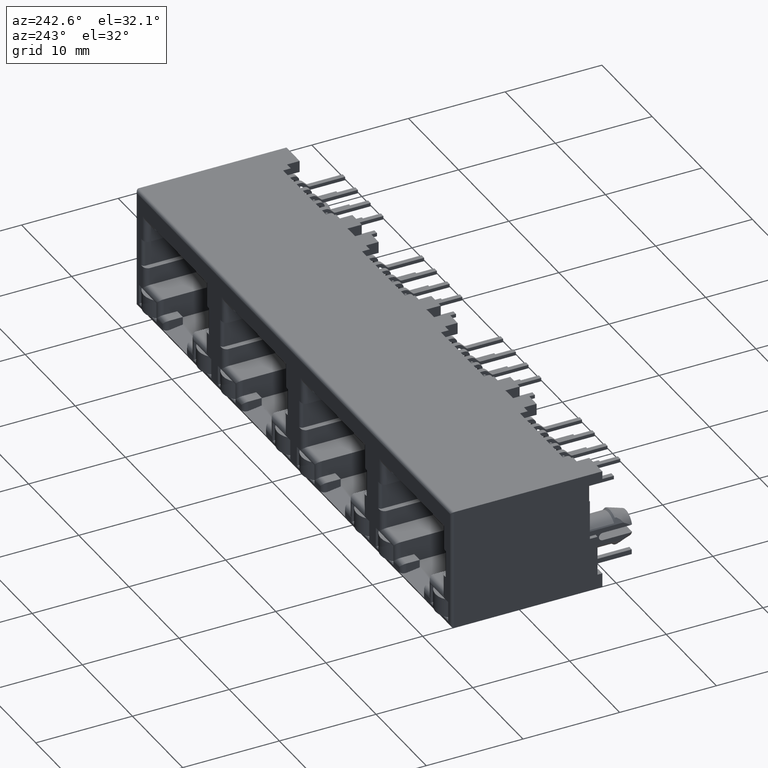
[diagram: clean part render]
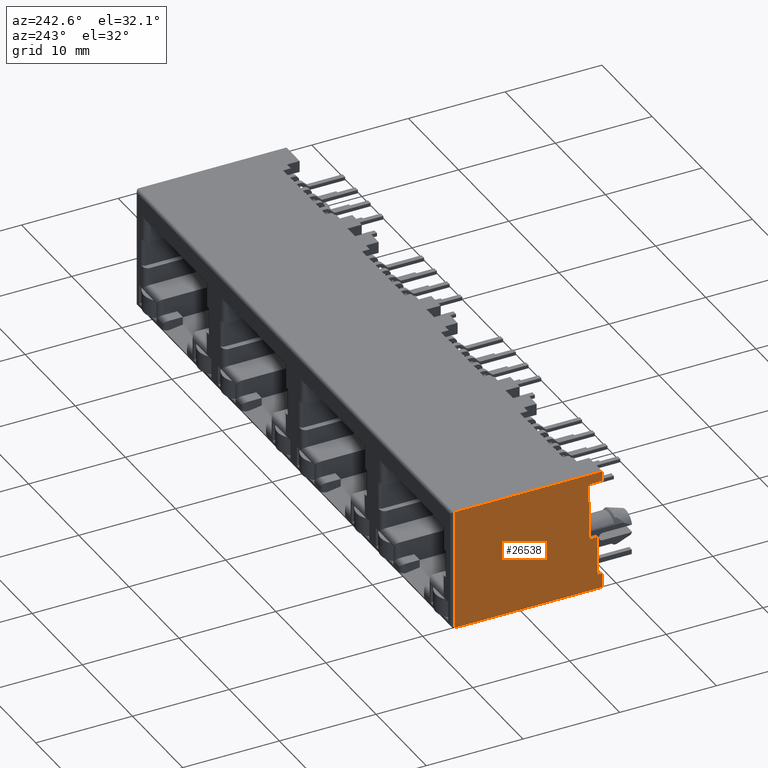
[diagram: same view with one face highlighted and labeled with its STEP entity id]
A machine part, auxiliary view. The second image highlights one B-rep face of the part: STEP entity #26538.
In plain terms, the highlighted planar face has unit normal (1, 0, 0).
Its self-contained STEP definition (entity closure, byte-faithful):
#55 = CARTESIAN_POINT ( 'NONE',  ( -31.50000000000000000, -6.500000000000000900, 3.450000000000000200 ) ) ;
#434 = CARTESIAN_POINT ( 'NONE',  ( -31.50000000000000000, -6.500000000000000900, 2.083333333333333000 ) ) ;
#683 = VERTEX_POINT ( 'NONE', #9880 ) ;
#1081 = CARTESIAN_POINT ( 'NONE',  ( -31.50000000000000000, -7.299999999999999800, -2.016666666666667100 ) ) ;
#1805 = CARTESIAN_POINT ( 'NONE',  ( -31.50000000000000000, -7.300000000000000700, -4.750000000000000000 ) ) ;
#2085 = CARTESIAN_POINT ( 'NONE',  ( -31.50000000000000000, -6.500000000000000900, 3.450000000000000200 ) ) ;
#2777 = EDGE_CURVE ( 'NONE', #54307, #683, #27823, .T. ) ;
#3008 = ORIENTED_EDGE ( 'NONE', *, *, #20198, .F. ) ;
#3746 = CARTESIAN_POINT ( 'NONE',  ( -31.50000000000000000, -6.500000000000000900, -0.6500000000000000200 ) ) ;
#5172 = ORIENTED_EDGE ( 'NONE', *, *, #21137, .F. ) ;
#5208 = CARTESIAN_POINT ( 'NONE',  ( -31.50000000000000000, -6.349999999999997900, 3.450000000000000200 ) ) ;
#5514 = CARTESIAN_POINT ( 'NONE',  ( -31.50000000000000000, -6.349999999999997900, 3.450000000000000200 ) ) ;
#5989 = B_SPLINE_CURVE_WITH_KNOTS ( 'NONE', 3,
 ( #63293, #57404, #41717, #9235 ),
 .UNSPECIFIED., .F., .F.,
 ( 4, 4 ),
 ( 0.0000000000000000000, 1.000000000000000000 ),
 .UNSPECIFIED. ) ;
#7032 = ORIENTED_EDGE ( 'NONE', *, *, #40202, .F. ) ;
#7733 = CARTESIAN_POINT ( 'NONE',  ( -31.50000000000000000, -7.300000000000000700, -4.750000000000000000 ) ) ;
#8580 = EDGE_CURVE ( 'NONE', #17615, #8742, #40183, .T. ) ;
#8742 = VERTEX_POINT ( 'NONE', #66543 ) ;
#9012 = B_SPLINE_CURVE_WITH_KNOTS ( 'NONE', 3,
 ( #3746, #52822, #25048, #30505 ),
 .UNSPECIFIED., .F., .F.,
 ( 4, 4 ),
 ( 0.0000000000000000000, 1.000000000000000000 ),
 .UNSPECIFIED. ) ;
#9235 = CARTESIAN_POINT ( 'NONE',  ( -31.50000000000000000, -6.349999999999997900, 5.249999999999999100 ) ) ;
#9880 = CARTESIAN_POINT ( 'NONE',  ( -31.50000000000000000, 7.500000000000000000, -6.250000000000000000 ) ) ;
#11092 = CARTESIAN_POINT ( 'NONE',  ( -31.49999999999801400, -6.349999999998009200, 4.649999999999998600 ) ) ;
#11522 = CARTESIAN_POINT ( 'NONE',  ( -31.50000000000000000, -6.500000000000000900, 3.450000000000000200 ) ) ;
#13955 = CARTESIAN_POINT ( 'NONE',  ( -31.50000000000000000, -7.799999999999999800, -5.750000000000000000 ) ) ;
#14431 = VERTEX_POINT ( 'NONE', #22978 ) ;
#14692 = CARTESIAN_POINT ( 'NONE',  ( -31.50000000000000000, -7.800000000000000700, 6.299999999999999800 ) ) ;
#15457 = CARTESIAN_POINT ( 'NONE',  ( -31.50000000000000000, -6.399999999999998600, 3.449999999999999700 ) ) ;
#16512 = ORIENTED_EDGE ( 'NONE', *, *, #57462, .F. ) ;
#17513 = ORIENTED_EDGE ( 'NONE', *, *, #42119, .F. ) ;
#17615 = VERTEX_POINT ( 'NONE', #2085 ) ;
#18555 = CARTESIAN_POINT ( 'NONE',  ( -31.50000000000000000, 7.500000000000000000, 6.299999999999999800 ) ) ;
#18674 = ORIENTED_EDGE ( 'NONE', *, *, #53022, .T. ) ;
#20198 = EDGE_CURVE ( 'NONE', #67126, #683, #59622, .T. ) ;
#21137 = EDGE_CURVE ( 'NONE', #67197, #61214, #30865, .T. ) ;
#22580 = VERTEX_POINT ( 'NONE', #47813 ) ;
#22978 = CARTESIAN_POINT ( 'NONE',  ( -31.50000000000000000, -6.349999999999997900, 5.249999999999999100 ) ) ;
#22981 = CARTESIAN_POINT ( 'NONE',  ( -31.50000000000000000, -7.800000000000000700, -6.250000000000000000 ) ) ;
#23556 = EDGE_LOOP ( 'NONE', ( #7032, #17513, #5172, #47651, #58033, #33050, #16512, #42414, #36884, #18674, #54699, #3008 ) ) ;
#24090 = CARTESIAN_POINT ( 'NONE',  ( -31.50000000000000000, -7.800000000000000700, 6.299999999999999800 ) ) ;
#25048 = CARTESIAN_POINT ( 'NONE',  ( -31.50000000000000000, -7.033333333333334100, -0.6500000000000001300 ) ) ;
#25300 = CARTESIAN_POINT ( 'NONE',  ( -31.50000000000000000, -7.800000000000000700, -6.250000000000000000 ) ) ;
#25584 = EDGE_CURVE ( 'NONE', #48247, #14431, #5989, .T. ) ;
#26086 = EDGE_CURVE ( 'NONE', #8742, #67197, #9012, .T. ) ;
#26538 = ADVANCED_FACE ( 'NONE', ( #36885 ), #66722, .F. ) ;
#26826 = B_SPLINE_CURVE_WITH_KNOTS ( 'NONE', 3,
 ( #5514, #15457, #43427, #55 ),
 .UNSPECIFIED., .F., .F.,
 ( 4, 4 ),
 ( 0.0000000000000000000, 1.000000000000000000 ),
 .UNSPECIFIED. ) ;
#26907 = EDGE_CURVE ( 'NONE', #55022, #17615, #26826, .T. ) ;
#27823 = B_SPLINE_CURVE_WITH_KNOTS ( 'NONE', 3,
 ( #47733, #58632, #53412, #69287 ),
 .UNSPECIFIED., .F., .F.,
 ( 4, 4 ),
 ( 0.0000000000000000000, 1.000000000000000000 ),
 .UNSPECIFIED. ) ;
#28535 = CARTESIAN_POINT ( 'NONE',  ( -31.50000000000000000, -7.300000000000000700, -4.750000000000000000 ) ) ;
#29082 = AXIS2_PLACEMENT_3D ( 'NONE', #45393, #55373, #60803 ) ;
#29152 = CARTESIAN_POINT ( 'NONE',  ( -31.50000000000000000, -6.349999999999997900, 3.450000000000000200 ) ) ;
#29224 = EDGE_CURVE ( 'NONE', #44753, #48247, #56329, .T. ) ;
#30206 = CARTESIAN_POINT ( 'NONE',  ( -31.50000000000000000, -7.466666666666667700, -4.750000000000000000 ) ) ;
#30505 = CARTESIAN_POINT ( 'NONE',  ( -31.50000000000000000, -7.300000000000000700, -0.6500000000000000200 ) ) ;
#30865 = B_SPLINE_CURVE_WITH_KNOTS ( 'NONE', 3,
 ( #49688, #1081, #55136, #28535 ),
 .UNSPECIFIED., .F., .F.,
 ( 4, 4 ),
 ( 0.0000000000000000000, 1.000000000000000000 ),
 .UNSPECIFIED. ) ;
#31146 = CARTESIAN_POINT ( 'NONE',  ( -31.50000000000000000, -7.800000000000000700, -6.250000000000000000 ) ) ;
#33050 = ORIENTED_EDGE ( 'NONE', *, *, #26907, .F. ) ;
#33155 = CARTESIAN_POINT ( 'NONE',  ( -31.49999999999801400, -6.349999999998009200, 4.049999999999999800 ) ) ;
#33359 = CARTESIAN_POINT ( 'NONE',  ( -31.50000000000000000, -6.500000000000000900, -0.6500000000000000200 ) ) ;
#36143 = CARTESIAN_POINT ( 'NONE',  ( -31.50000000000000000, -7.800000000000000700, 6.299999999999999800 ) ) ;
#36268 = CARTESIAN_POINT ( 'NONE',  ( -31.50000000000000000, 2.399999999999999500, 6.300000000000000700 ) ) ;
#36384 = CARTESIAN_POINT ( 'NONE',  ( -31.50000000000000000, -7.799999999999999800, 5.949999999999997500 ) ) ;
#36816 = CARTESIAN_POINT ( 'NONE',  ( -31.50000000000000000, -2.700000000000001100, -6.250000000000000000 ) ) ;
#36884 = ORIENTED_EDGE ( 'NONE', *, *, #29224, .F. ) ;
#36885 = FACE_OUTER_BOUND ( 'NONE', #23556, .T. ) ;
#40183 = B_SPLINE_CURVE_WITH_KNOTS ( 'NONE', 3,
 ( #11522, #434, #66302, #33359 ),
 .UNSPECIFIED., .F., .F.,
 ( 4, 4 ),
 ( 0.0000000000000000000, 1.000000000000000000 ),
 .UNSPECIFIED. ) ;
#40202 = EDGE_CURVE ( 'NONE', #22580, #67126, #54368, .T. ) ;
#40993 = CARTESIAN_POINT ( 'NONE',  ( -31.50000000000000000, -7.800000000000000700, -4.750000000000000900 ) ) ;
#41717 = CARTESIAN_POINT ( 'NONE',  ( -31.50000000000000000, -6.833333333333332100, 5.250000000000000000 ) ) ;
#42119 = EDGE_CURVE ( 'NONE', #61214, #22580, #53888, .T. ) ;
#42414 = ORIENTED_EDGE ( 'NONE', *, *, #25584, .F. ) ;
#43427 = CARTESIAN_POINT ( 'NONE',  ( -31.50000000000000000, -6.450000000000000200, 3.449999999999999700 ) ) ;
#43819 = CARTESIAN_POINT ( 'NONE',  ( -31.50000000000000000, -6.349999999999997900, 5.249999999999999100 ) ) ;
#44753 = VERTEX_POINT ( 'NONE', #24090 ) ;
#45393 = CARTESIAN_POINT ( 'NONE',  ( -31.50000000000000000, 7.806000000000000000, -6.501000000000000300 ) ) ;
#46135 = CARTESIAN_POINT ( 'NONE',  ( -31.50000000000000000, -7.633333333333333700, -4.750000000000000000 ) ) ;
#47651 = ORIENTED_EDGE ( 'NONE', *, *, #26086, .F. ) ;
#47733 = CARTESIAN_POINT ( 'NONE',  ( -31.50000000000000000, 7.500000000000000000, 6.299999999999999800 ) ) ;
#47813 = CARTESIAN_POINT ( 'NONE',  ( -31.50000000000000000, -7.800000000000000700, -4.750000000000000900 ) ) ;
#48247 = VERTEX_POINT ( 'NONE', #67257 ) ;
#49688 = CARTESIAN_POINT ( 'NONE',  ( -31.50000000000000000, -7.300000000000000700, -0.6500000000000000200 ) ) ;
#51446 = B_SPLINE_CURVE_WITH_KNOTS ( 'NONE', 3,
 ( #14692, #63527, #36268, #69014 ),
 .UNSPECIFIED., .F., .F.,
 ( 4, 4 ),
 ( 0.0000000000000000000, 1.000000000000000000 ),
 .UNSPECIFIED. ) ;
#52761 = B_SPLINE_CURVE_WITH_KNOTS ( 'NONE', 3,
 ( #43819, #11092, #33155, #5208 ),
 .UNSPECIFIED., .F., .F.,
 ( 4, 4 ),
 ( 0.0000000000000000000, 1.000000000000000000 ),
 .UNSPECIFIED. ) ;
#52822 = CARTESIAN_POINT ( 'NONE',  ( -31.50000000000000000, -6.766666666666667500, -0.6500000000000001300 ) ) ;
#52856 = CARTESIAN_POINT ( 'NONE',  ( -31.50000000000000000, -7.300000000000000700, -0.6500000000000000200 ) ) ;
#53022 = EDGE_CURVE ( 'NONE', #44753, #54307, #51446, .T. ) ;
#53212 = CARTESIAN_POINT ( 'NONE',  ( -31.50000000000000000, 2.399999999999999500, -6.250000000000000000 ) ) ;
#53412 = CARTESIAN_POINT ( 'NONE',  ( -31.50000000000000000, 7.499999999999996400, -2.066666666666667300 ) ) ;
#53888 = B_SPLINE_CURVE_WITH_KNOTS ( 'NONE', 3,
 ( #7733, #30206, #46135, #56557 ),
 .UNSPECIFIED., .F., .F.,
 ( 4, 4 ),
 ( 0.0000000000000000000, 1.000000000000000000 ),
 .UNSPECIFIED. ) ;
#54180 = CARTESIAN_POINT ( 'NONE',  ( -31.50000000000000000, -7.799999999999999800, 5.599999999999997900 ) ) ;
#54307 = VERTEX_POINT ( 'NONE', #18555 ) ;
#54368 = B_SPLINE_CURVE_WITH_KNOTS ( 'NONE', 3,
 ( #40993, #60700, #13955, #22981 ),
 .UNSPECIFIED., .F., .F.,
 ( 4, 4 ),
 ( 0.0000000000000000000, 1.000000000000000000 ),
 .UNSPECIFIED. ) ;
#54699 = ORIENTED_EDGE ( 'NONE', *, *, #2777, .T. ) ;
#55022 = VERTEX_POINT ( 'NONE', #29152 ) ;
#55136 = CARTESIAN_POINT ( 'NONE',  ( -31.50000000000000000, -7.299999999999999800, -3.383333333333333700 ) ) ;
#55373 = DIRECTION ( 'NONE',  ( 1.000000000000000000, 0.0000000000000000000, -0.0000000000000000000 ) ) ;
#56329 = B_SPLINE_CURVE_WITH_KNOTS ( 'NONE', 3,
 ( #36143, #36384, #54180, #64122 ),
 .UNSPECIFIED., .F., .F.,
 ( 4, 4 ),
 ( 0.0000000000000000000, 1.000000000000000000 ),
 .UNSPECIFIED. ) ;
#56557 = CARTESIAN_POINT ( 'NONE',  ( -31.50000000000000000, -7.800000000000000700, -4.750000000000000900 ) ) ;
#57404 = CARTESIAN_POINT ( 'NONE',  ( -31.50000000000000000, -7.316666666666666400, 5.250000000000000000 ) ) ;
#57462 = EDGE_CURVE ( 'NONE', #14431, #55022, #52761, .T. ) ;
#58033 = ORIENTED_EDGE ( 'NONE', *, *, #8580, .F. ) ;
#58632 = CARTESIAN_POINT ( 'NONE',  ( -31.50000000000000000, 7.499999999999996400, 2.116666666666666700 ) ) ;
#59622 = B_SPLINE_CURVE_WITH_KNOTS ( 'NONE', 3,
 ( #31146, #36816, #53212, #69556 ),
 .UNSPECIFIED., .F., .F.,
 ( 4, 4 ),
 ( 0.0000000000000000000, 1.000000000000000000 ),
 .UNSPECIFIED. ) ;
#60700 = CARTESIAN_POINT ( 'NONE',  ( -31.50000000000000000, -7.799999999999999800, -5.250000000000000000 ) ) ;
#60803 = DIRECTION ( 'NONE',  ( 0.0000000000000000000, 0.0000000000000000000, 1.000000000000000000 ) ) ;
#61214 = VERTEX_POINT ( 'NONE', #1805 ) ;
#63293 = CARTESIAN_POINT ( 'NONE',  ( -31.50000000000000000, -7.800000000000000700, 5.249999999999999100 ) ) ;
#63527 = CARTESIAN_POINT ( 'NONE',  ( -31.50000000000000000, -2.700000000000001100, 6.300000000000000700 ) ) ;
#64122 = CARTESIAN_POINT ( 'NONE',  ( -31.50000000000000000, -7.800000000000000700, 5.249999999999999100 ) ) ;
#66302 = CARTESIAN_POINT ( 'NONE',  ( -31.50000000000000000, -6.500000000000000900, 0.7166666666666662300 ) ) ;
#66543 = CARTESIAN_POINT ( 'NONE',  ( -31.50000000000000000, -6.500000000000000900, -0.6500000000000000200 ) ) ;
#66722 = PLANE ( 'NONE',  #29082 ) ;
#67126 = VERTEX_POINT ( 'NONE', #25300 ) ;
#67197 = VERTEX_POINT ( 'NONE', #52856 ) ;
#67257 = CARTESIAN_POINT ( 'NONE',  ( -31.50000000000000000, -7.800000000000000700, 5.249999999999999100 ) ) ;
#69014 = CARTESIAN_POINT ( 'NONE',  ( -31.50000000000000000, 7.500000000000000000, 6.299999999999999800 ) ) ;
#69287 = CARTESIAN_POINT ( 'NONE',  ( -31.50000000000000000, 7.500000000000000000, -6.250000000000000000 ) ) ;
#69556 = CARTESIAN_POINT ( 'NONE',  ( -31.50000000000000000, 7.500000000000000000, -6.250000000000000000 ) ) ;